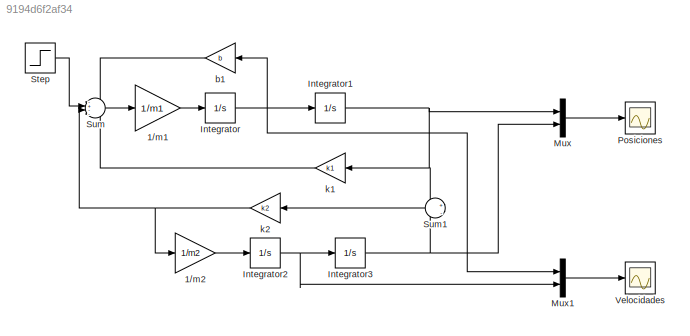
MODEL slx_9194d6f2af34
KIND model
CONFIG AbsTol = auto
CONFIG EnableMultiTasking = off
CONFIG FixedStep = auto
CONFIG MaxStep = auto
CONFIG MinStep = auto
CONFIG RelTol = 1e-3
CONFIG SampleTimeConstraint = Unconstrained
CONFIG SolverName = VariableStepAuto
CONFIG StartTime = 0.0
CONFIG StopTime = 10.0
WORKSPACE source: mxarray member
WORKSPACE b = 0.8
WORKSPACE k1 = 1.5
WORKSPACE k2 = 2
WORKSPACE m1 = 2
WORKSPACE m2 = 1
BLOCK [Gain] 1//m1
  Gain = 1/m1
  NameLocation = top
BLOCK [Gain] 1//m2
  Gain = 1/m2
  NameLocation = top
BLOCK [Integrator] Integrator
BLOCK [Integrator] Integrator1
BLOCK [Integrator] Integrator2
BLOCK [Integrator] Integrator3
BLOCK [Mux] Mux
  DisplayOption = bar
  Inputs = 2
BLOCK [Mux] Mux1
  DisplayOption = bar
  Inputs = 2
BLOCK [Scope] Posiciones
  Floating = off
  NumInputPorts = 1
  ScopeSpecificationString = Simulink.scopes.TimeScopeBlockCfg('CurrentConfiguration', extmgr.ConfigurationSet(extmgr.Configuration('Core','General UI',true),extmgr.Configuration('Core','Source UI',true),extmgr.Configuration('Sources','WiredSimulink',true),extmgr.Configuration('Visuals','Time Domain',true,'SerializedDisplays',{struct('MinYLimReal','-0.20048','MaxYLimReal','1.80429','YLabelReal','','MinYLimMag','0.00000','MaxY...<+1463ch>
BLOCK [Step] Step
  SampleTime = 0
BLOCK [Sum] Sum
  Inputs = -+--
BLOCK [Sum] Sum1
  Inputs = +|-
BLOCK [Scope] Velocidades
  Floating = off
  NumInputPorts = 1
  ScopeSpecificationString = Simulink.scopes.TimeScopeBlockCfg('CurrentConfiguration', extmgr.ConfigurationSet(extmgr.Configuration('Core','General UI',true),extmgr.Configuration('Core','Source UI',true),extmgr.Configuration('Sources','WiredSimulink',true,'DataLoggingVariableName','ScopeData1'),extmgr.Configuration('Visuals','Time Domain',true,'SerializedDisplays',{struct('MinYLimReal','-0.35933','MaxYLimReal','0.74414','YLab...<+1501ch>
BLOCK [Gain] b1
  Gain = b
  NameLocation = top
BLOCK [Gain] k1
  Gain = k1
  NameLocation = top
BLOCK [Gain] k2
  Gain = k2
  NameLocation = top
LINE 1//m1:1 -> Integrator:1
LINE 1//m2:1 -> Integrator2:1
NET Integrator1:1 -> Mux:1, Sum1:1, k1:1
NET Integrator2:1 -> Integrator3:1, Mux1:2
NET Integrator3:1 -> Mux:2, Sum1:2
NET Integrator:1 -> Integrator1:1, Mux1:1, b1:1
LINE Mux1:1 -> Velocidades:1
LINE Mux:1 -> Posiciones:1
LINE Step:1 -> Sum:2
LINE Sum1:1 -> k2:1
LINE Sum:1 -> 1//m1:1
LINE b1:1 -> Sum:1
LINE k1:1 -> Sum:4
NET k2:1 -> 1//m2:1, Sum:3
note: NET lines group one-source signal fan-out (src -> all destinations, sorted); 1:1 wires keep LINE
